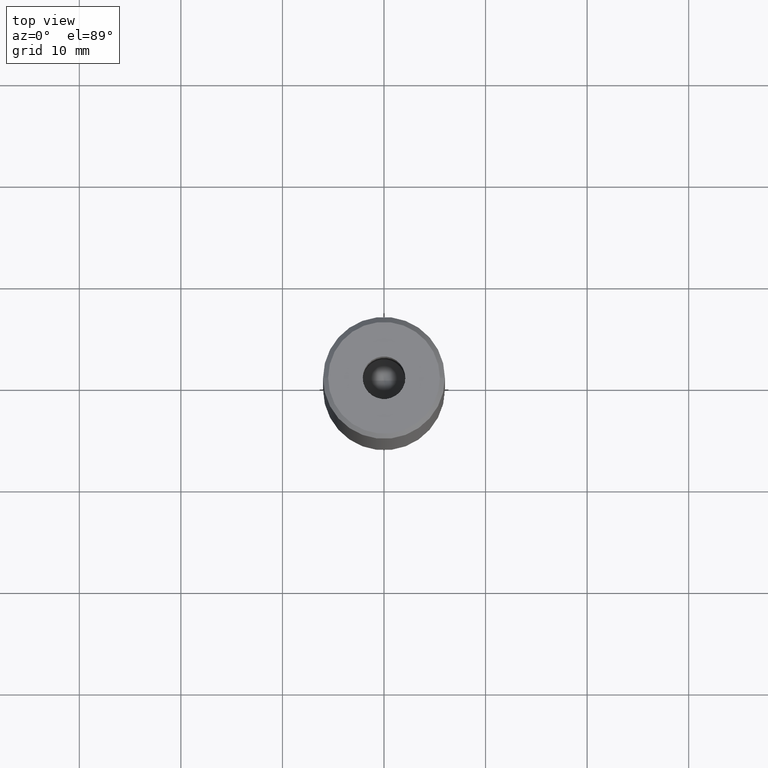
[diagram: clean part render]
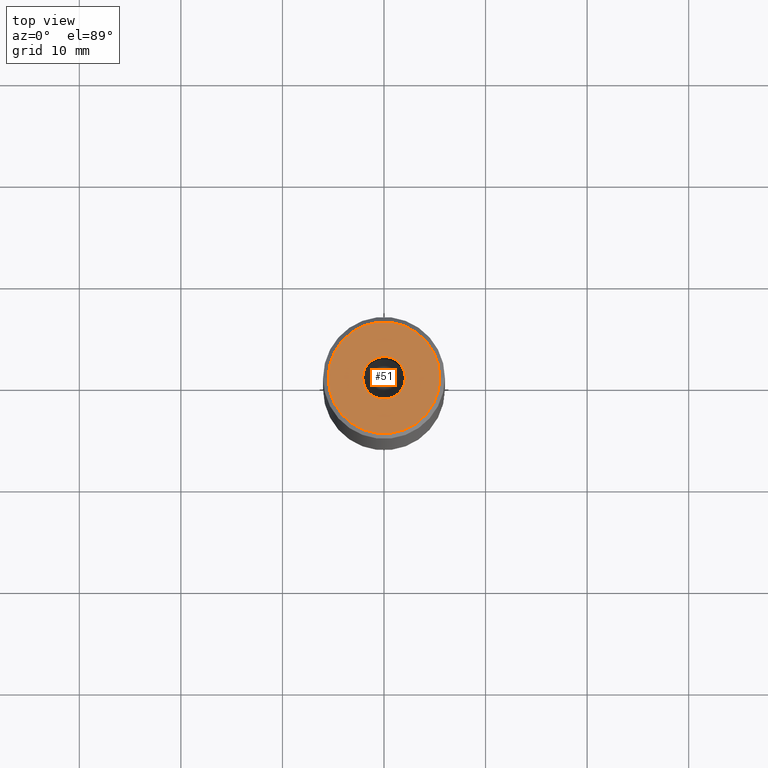
[diagram: same view with one face highlighted and labeled with its STEP entity id]
A machine part, top view. The second image highlights one B-rep face of the part: STEP entity #51.
In plain terms, the highlighted planar face has unit normal (0, -0, 1).
Its self-contained STEP definition (entity closure, byte-faithful):
#18 = CARTESIAN_POINT ( 'NONE',  ( -2.099999999999998757, 2.571758278209439985E-16, -1.990051048614449116E-16 ) ) ;
#51 = ADVANCED_FACE ( 'NONE', ( #432, #337 ), #165, .T. ) ;
#71 = DIRECTION ( 'NONE',  ( -0.000000000000000000, -0.000000000000000000, 1.000000000000000000 ) ) ;
#79 = CARTESIAN_POINT ( 'NONE',  ( 0.000000000000000000, 0.000000000000000000, -1.990051048614449116E-16 ) ) ;
#96 = AXIS2_PLACEMENT_3D ( 'NONE', #201, #242, #391 ) ;
#105 = CARTESIAN_POINT ( 'NONE',  ( 0.000000000000000000, 0.000000000000000000, 0.000000000000000000 ) ) ;
#120 = AXIS2_PLACEMENT_3D ( 'NONE', #79, #122, #187 ) ;
#122 = DIRECTION ( 'NONE',  ( -0.000000000000000000, -0.000000000000000000, 1.000000000000000000 ) ) ;
#157 = DIRECTION ( 'NONE',  ( 1.000000000000000000, 0.000000000000000000, 0.000000000000000000 ) ) ;
#165 = PLANE ( 'NONE',  #283 ) ;
#187 = DIRECTION ( 'NONE',  ( 1.000000000000000000, 0.000000000000000000, 0.000000000000000000 ) ) ;
#189 = EDGE_LOOP ( 'NONE', ( #295, #374 ) ) ;
#195 = EDGE_LOOP ( 'NONE', ( #476, #389 ) ) ;
#201 = CARTESIAN_POINT ( 'NONE',  ( 0.000000000000000000, 0.000000000000000000, 0.000000000000000000 ) ) ;
#236 = CIRCLE ( 'NONE', #466, 5.499999999999990230 ) ;
#239 = CARTESIAN_POINT ( 'NONE',  ( 2.099999999999998757, 0.000000000000000000, -1.990051048614449116E-16 ) ) ;
#242 = DIRECTION ( 'NONE',  ( -0.000000000000000000, -0.000000000000000000, 1.000000000000000000 ) ) ;
#245 = DIRECTION ( 'NONE',  ( 1.000000000000000000, 0.000000000000000000, 0.000000000000000000 ) ) ;
#254 = AXIS2_PLACEMENT_3D ( 'NONE', #335, #71, #245 ) ;
#264 = EDGE_CURVE ( 'NONE', #506, #354, #322, .T. ) ;
#283 = AXIS2_PLACEMENT_3D ( 'NONE', #525, #383, #297 ) ;
#295 = ORIENTED_EDGE ( 'NONE', *, *, #471, .F. ) ;
#297 = DIRECTION ( 'NONE',  ( 1.000000000000000000, 0.000000000000000000, 0.000000000000000000 ) ) ;
#298 = VERTEX_POINT ( 'NONE', #422 ) ;
#322 = CIRCLE ( 'NONE', #120, 2.099999999999998757 ) ;
#335 = CARTESIAN_POINT ( 'NONE',  ( 0.000000000000000000, 0.000000000000000000, -1.990051048614449116E-16 ) ) ;
#337 = FACE_OUTER_BOUND ( 'NONE', #195, .T. ) ;
#354 = VERTEX_POINT ( 'NONE', #239 ) ;
#362 = CIRCLE ( 'NONE', #96, 5.499999999999990230 ) ;
#374 = ORIENTED_EDGE ( 'NONE', *, *, #264, .F. ) ;
#383 = DIRECTION ( 'NONE',  ( 0.000000000000000000, -0.000000000000000000, 1.000000000000000000 ) ) ;
#389 = ORIENTED_EDGE ( 'NONE', *, *, #461, .T. ) ;
#391 = DIRECTION ( 'NONE',  ( 1.000000000000000000, 0.000000000000000000, 0.000000000000000000 ) ) ;
#419 = VERTEX_POINT ( 'NONE', #460 ) ;
#422 = CARTESIAN_POINT ( 'NONE',  ( -5.499999999999990230, 0.000000000000000000, 0.000000000000000000 ) ) ;
#423 = DIRECTION ( 'NONE',  ( -0.000000000000000000, -0.000000000000000000, 1.000000000000000000 ) ) ;
#432 = FACE_BOUND ( 'NONE', #189, .T. ) ;
#438 = CIRCLE ( 'NONE', #254, 2.099999999999998757 ) ;
#460 = CARTESIAN_POINT ( 'NONE',  ( 5.499999999999990230, 7.041719095097274963E-16, 0.000000000000000000 ) ) ;
#461 = EDGE_CURVE ( 'NONE', #419, #298, #362, .T. ) ;
#466 = AXIS2_PLACEMENT_3D ( 'NONE', #105, #423, #157 ) ;
#471 = EDGE_CURVE ( 'NONE', #354, #506, #438, .T. ) ;
#476 = ORIENTED_EDGE ( 'NONE', *, *, #484, .T. ) ;
#484 = EDGE_CURVE ( 'NONE', #298, #419, #236, .T. ) ;
#506 = VERTEX_POINT ( 'NONE', #18 ) ;
#525 = CARTESIAN_POINT ( 'NONE',  ( 0.000000000000000000, 0.000000000000000000, 0.000000000000000000 ) ) ;